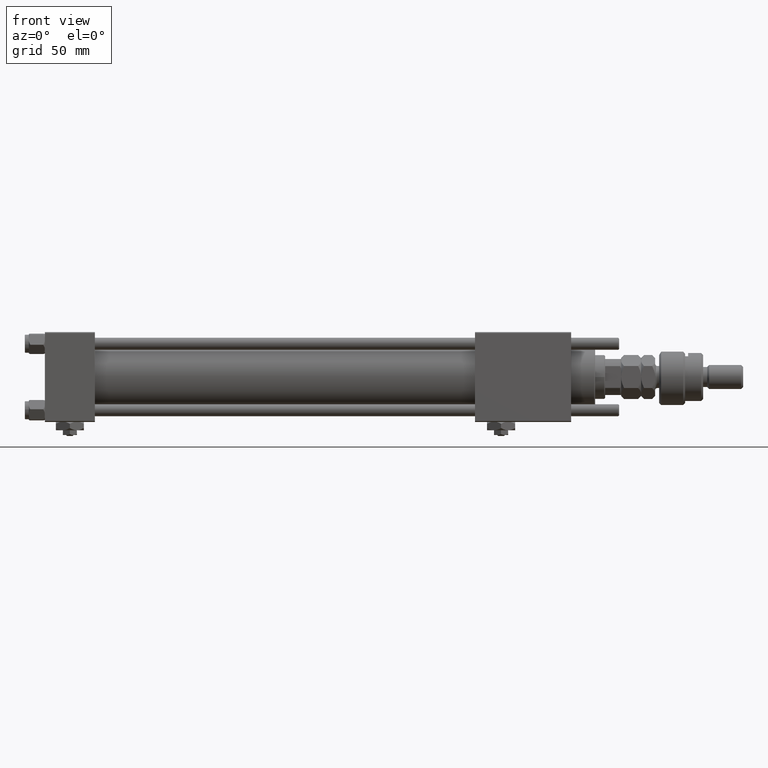
[diagram: clean part render]
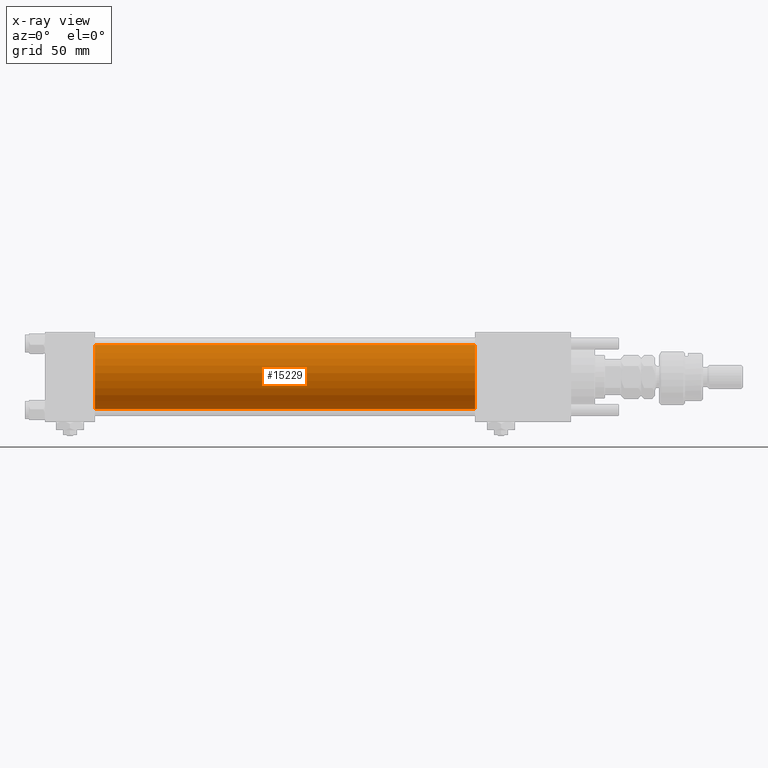
[diagram: x-ray — body ghosted, one internal face saturated and labeled with its STEP entity id]
A machine part, front view, then the same camera in x-ray: the body is ghosted and one INTERNAL B-rep face — a face not visible from any outside direction — is saturated and labeled: STEP entity #15229.
In plain terms, the highlighted cylindrical surface (edge-blend (fillet) strip) has radius 16 mm, axis along (-1, -0, -0).
Its self-contained STEP definition (entity closure, byte-faithful):
#840 = CIRCLE ( 'NONE', #38675, 16.00000000000000000 ) ;
#3059 = DIRECTION ( 'NONE',  ( -1.000000000000000000, -0.000000000000000000, -0.000000000000000000 ) ) ;
#5055 = VERTEX_POINT ( 'NONE', #22231 ) ;
#7161 = DIRECTION ( 'NONE',  ( -1.000000000000000000, -0.000000000000000000, -0.000000000000000000 ) ) ;
#10489 = VECTOR ( 'NONE', #37321, 1000.000000000000000 ) ;
#11451 = VECTOR ( 'NONE', #3059, 1000.000000000000000 ) ;
#11562 = DIRECTION ( 'NONE',  ( 0.000000000000000000, 0.000000000000000000, -1.000000000000000000 ) ) ;
#12148 = FACE_OUTER_BOUND ( 'NONE', #13564, .T. ) ;
#13564 = EDGE_LOOP ( 'NONE', ( #26191, #61052, #49074, #37505 ) ) ;
#15229 = ADVANCED_FACE ( 'NONE', ( #12148 ), #31164, .F. ) ;
#16235 = CARTESIAN_POINT ( 'NONE',  ( 25.00000000000000000, -2.602085213965210642E-15, 0.000000000000000000 ) ) ;
#18047 = AXIS2_PLACEMENT_3D ( 'NONE', #30242, #7161, #35866 ) ;
#18290 = LINE ( 'NONE', #37944, #10489 ) ;
#21922 = VERTEX_POINT ( 'NONE', #60259 ) ;
#22064 = CARTESIAN_POINT ( 'NONE',  ( 215.0000000000000000, -2.602085213965210642E-15, 16.00000000000000000 ) ) ;
#22231 = CARTESIAN_POINT ( 'NONE',  ( 215.0000000000000000, -2.602085213965210642E-15, 16.00000000000000000 ) ) ;
#25034 = DIRECTION ( 'NONE',  ( 0.000000000000000000, 0.000000000000000000, -1.000000000000000000 ) ) ;
#25900 = CARTESIAN_POINT ( 'NONE',  ( 25.00000000000000000, -6.426503353294456087E-16, -16.00000000000000000 ) ) ;
#26191 = ORIENTED_EDGE ( 'NONE', *, *, #55931, .T. ) ;
#29552 = EDGE_CURVE ( 'NONE', #30393, #46590, #840, .T. ) ;
#30242 = CARTESIAN_POINT ( 'NONE',  ( 215.0000000000000000, -2.602085213965210642E-15, 0.000000000000000000 ) ) ;
#30393 = VERTEX_POINT ( 'NONE', #39053 ) ;
#31164 = CYLINDRICAL_SURFACE ( 'NONE', #18047, 16.00000000000000000 ) ;
#31732 = LINE ( 'NONE', #22064, #11451 ) ;
#35259 = DIRECTION ( 'NONE',  ( 1.000000000000000000, 0.000000000000000000, 0.000000000000000000 ) ) ;
#35866 = DIRECTION ( 'NONE',  ( 0.000000000000000000, 0.000000000000000000, 1.000000000000000000 ) ) ;
#36354 = CIRCLE ( 'NONE', #60269, 16.00000000000000000 ) ;
#37321 = DIRECTION ( 'NONE',  ( -1.000000000000000000, -0.000000000000000000, -0.000000000000000000 ) ) ;
#37505 = ORIENTED_EDGE ( 'NONE', *, *, #54908, .F. ) ;
#37944 = CARTESIAN_POINT ( 'NONE',  ( 215.0000000000000000, -6.426503353294456087E-16, -16.00000000000000000 ) ) ;
#38675 = AXIS2_PLACEMENT_3D ( 'NONE', #16235, #35259, #11562 ) ;
#39053 = CARTESIAN_POINT ( 'NONE',  ( 25.00000000000000000, -2.602085213965210642E-15, 16.00000000000000000 ) ) ;
#40014 = DIRECTION ( 'NONE',  ( 1.000000000000000000, 0.000000000000000000, 0.000000000000000000 ) ) ;
#45311 = CARTESIAN_POINT ( 'NONE',  ( 215.0000000000000000, -2.602085213965210642E-15, 0.000000000000000000 ) ) ;
#46590 = VERTEX_POINT ( 'NONE', #25900 ) ;
#49074 = ORIENTED_EDGE ( 'NONE', *, *, #29552, .F. ) ;
#54908 = EDGE_CURVE ( 'NONE', #5055, #30393, #31732, .T. ) ;
#54980 = EDGE_CURVE ( 'NONE', #21922, #46590, #18290, .T. ) ;
#55931 = EDGE_CURVE ( 'NONE', #5055, #21922, #36354, .T. ) ;
#60259 = CARTESIAN_POINT ( 'NONE',  ( 215.0000000000000000, -6.426503353294456087E-16, -16.00000000000000000 ) ) ;
#60269 = AXIS2_PLACEMENT_3D ( 'NONE', #45311, #40014, #25034 ) ;
#61052 = ORIENTED_EDGE ( 'NONE', *, *, #54980, .T. ) ;